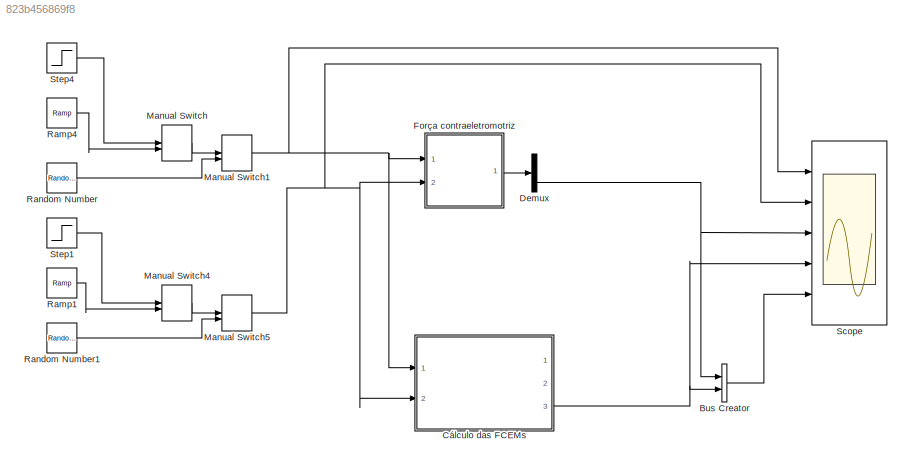
MODEL slx_823b456869f8
KIND model
BLOCK [BusCreator] Bus Creator
  DisplayOption = bar
  Inputs = 2
  Ports = [2, 1]
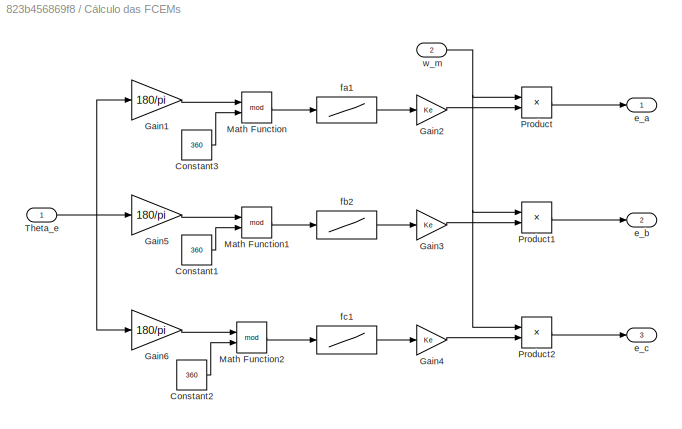
BLOCK [SubSystem] Cálculo das FCEMs
  FunctionWithSeparateData = off
  MaskHideContents = off
  MinAlgLoopOccurrences = off
  Opaque = off
  Ports = [2, 3]
  PropExecContextOutsideSubsystem = off
  RTWSystemCode = Auto
  RequestExecContextInheritance = off
BLOCK [Constant] Cálculo das FCEMs/Constant1
  Value = 360
BLOCK [Constant] Cálculo das FCEMs/Constant2
  Value = 360
BLOCK [Constant] Cálculo das FCEMs/Constant3
  Value = 360
BLOCK [Gain] Cálculo das FCEMs/Gain1
  Gain = 180/pi
  OutDataTypeStr = Inherit: Inherit via internal rule
  ParamDataTypeStr = Inherit: Inherit via internal rule
  SaturateOnIntegerOverflow = off
BLOCK [Gain] Cálculo das FCEMs/Gain2
  Gain = Ke
  OutDataTypeStr = Inherit: Inherit via internal rule
  ParamDataTypeStr = Inherit: Inherit via internal rule
  SaturateOnIntegerOverflow = off
BLOCK [Gain] Cálculo das FCEMs/Gain3
  Gain = Ke
  OutDataTypeStr = Inherit: Inherit via internal rule
  ParamDataTypeStr = Inherit: Inherit via internal rule
  SaturateOnIntegerOverflow = off
BLOCK [Gain] Cálculo das FCEMs/Gain4
  Gain = Ke
  OutDataTypeStr = Inherit: Inherit via internal rule
  ParamDataTypeStr = Inherit: Inherit via internal rule
  SaturateOnIntegerOverflow = off
BLOCK [Gain] Cálculo das FCEMs/Gain5
  Gain = 180/pi
  OutDataTypeStr = Inherit: Inherit via internal rule
  ParamDataTypeStr = Inherit: Inherit via internal rule
  SaturateOnIntegerOverflow = off
BLOCK [Gain] Cálculo das FCEMs/Gain6
  Gain = 180/pi
  OutDataTypeStr = Inherit: Inherit via internal rule
  ParamDataTypeStr = Inherit: Inherit via internal rule
  SaturateOnIntegerOverflow = off
BLOCK [Math] Cálculo das FCEMs/Math Function
  Operator = mod
  Ports = [2, 1]
BLOCK [Math] Cálculo das FCEMs/Math Function1
  Operator = mod
  Ports = [2, 1]
BLOCK [Math] Cálculo das FCEMs/Math Function2
  Operator = mod
  Ports = [2, 1]
BLOCK [Product] Cálculo das FCEMs/Product
  InputSameDT = off
  OutDataTypeStr = Inherit: Inherit via internal rule
  Ports = [2, 1]
  SaturateOnIntegerOverflow = off
BLOCK [Product] Cálculo das FCEMs/Product1
  InputSameDT = off
  OutDataTypeStr = Inherit: Inherit via internal rule
  Ports = [2, 1]
  SaturateOnIntegerOverflow = off
BLOCK [Product] Cálculo das FCEMs/Product2
  InputSameDT = off
  OutDataTypeStr = Inherit: Inherit via internal rule
  Ports = [2, 1]
  SaturateOnIntegerOverflow = off
BLOCK [Inport] Cálculo das FCEMs/Theta_e
  IconDisplay = Port number
BLOCK [Outport] Cálculo das FCEMs/e_a
  IconDisplay = Port number
BLOCK [Outport] Cálculo das FCEMs/e_b
  IconDisplay = Port number
  Port = 2
BLOCK [Outport] Cálculo das FCEMs/e_c
  IconDisplay = Port number
  Port = 3
BLOCK [Lookup] Cálculo das FCEMs/fa1
  InputValues = [0 30 60 90 120 150 180 210 240 270 300 330 360]
  SaturateOnIntegerOverflow = off
  Table = [ 1 1 1 0 -1 -1 -1 -1 -1 0 1 1 1]
BLOCK [Lookup] Cálculo das FCEMs/fb2
  InputValues = [0 30 60 90 120 150 180 210 240 270 300 330 360]
  SaturateOnIntegerOverflow = off
  Table = [-1 0 1 1 1 1 1 0 -1 -1 -1 -1 -1]
BLOCK [Lookup] Cálculo das FCEMs/fc1
  InputValues = [0 30 60 90 120 150 180 210 240 270 300 330 360]
  SaturateOnIntegerOverflow = off
  Table = [-1 -1 -1 -1 -1 0 1 1 1 1 1 0 -1]
BLOCK [Inport] Cálculo das FCEMs/w_m
  IconDisplay = Port number
  Port = 2
BLOCK [Demux] Demux
  DisplayOption = bar
  Outputs = 3
  Ports = [1, 3]
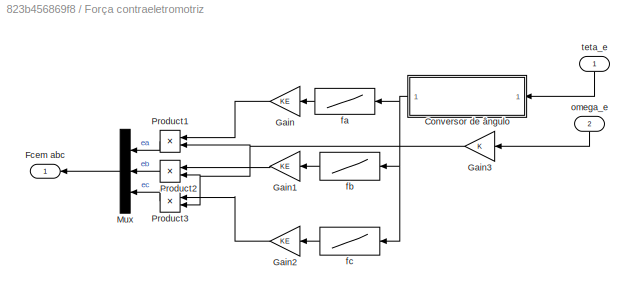
BLOCK [SubSystem] Força contraeletromotriz
  FunctionWithSeparateData = off
  MaskHideContents = off
  MinAlgLoopOccurrences = off
  Opaque = off
  Ports = [2, 1]
  PropExecContextOutsideSubsystem = off
  RTWSystemCode = Auto
  RequestExecContextInheritance = off
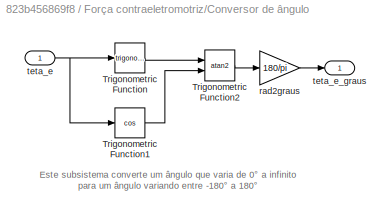
BLOCK [SubSystem] Força contraeletromotriz/Conversor de ângulo
  FunctionWithSeparateData = off
  MaskHideContents = off
  MinAlgLoopOccurrences = off
  Opaque = off
  Ports = [1, 1]
  PropExecContextOutsideSubsystem = off
  RTWSystemCode = Auto
  RequestExecContextInheritance = off
BLOCK [Trigonometry] Força contraeletromotriz/Conversor de ângulo/Trigonometric Function
  Ports = [1, 1]
BLOCK [Trigonometry] Força contraeletromotriz/Conversor de ângulo/Trigonometric Function1
  Operator = cos
  Ports = [1, 1]
BLOCK [Trigonometry] Força contraeletromotriz/Conversor de ângulo/Trigonometric Function2
  Operator = atan2
  Ports = [2, 1]
BLOCK [Gain] Força contraeletromotriz/Conversor de ângulo/rad2graus
  Gain = 180/pi
BLOCK [Inport] Força contraeletromotriz/Conversor de ângulo/teta_e
  IconDisplay = Port number
BLOCK [Outport] Força contraeletromotriz/Conversor de ângulo/teta_e_graus
  IconDisplay = Port number
BLOCK [Outport] Força contraeletromotriz/Fcem abc
  IconDisplay = Port number
BLOCK [Gain] Força contraeletromotriz/Gain
  Gain = KE
  OutDataTypeStr = Inherit: Inherit via internal rule
  ParamDataTypeStr = Inherit: Inherit via internal rule
  SaturateOnIntegerOverflow = off
BLOCK [Gain] Força contraeletromotriz/Gain1
  Gain = KE
  OutDataTypeStr = Inherit: Inherit via internal rule
  ParamDataTypeStr = Inherit: Inherit via internal rule
  SaturateOnIntegerOverflow = off
BLOCK [Gain] Força contraeletromotriz/Gain2
  Gain = KE
  OutDataTypeStr = Inherit: Inherit via internal rule
  ParamDataTypeStr = Inherit: Inherit via internal rule
  SaturateOnIntegerOverflow = off
BLOCK [Gain] Força contraeletromotriz/Gain3
  OutDataTypeStr = Inherit: Inherit via internal rule
  ParamDataTypeStr = Inherit: Inherit via internal rule
  SaturateOnIntegerOverflow = off
BLOCK [Mux] Força contraeletromotriz/Mux
  DisplayOption = bar
  Inputs = 3
  Ports = [3, 1]
BLOCK [Product] Força contraeletromotriz/Product1
  InputSameDT = off
  Ports = [2, 1]
  RndMeth = Floor
BLOCK [Product] Força contraeletromotriz/Product2
  InputSameDT = off
  Ports = [2, 1]
  RndMeth = Floor
BLOCK [Product] Força contraeletromotriz/Product3
  InputSameDT = off
  Ports = [2, 1]
  RndMeth = Floor
BLOCK [Lookup] Força contraeletromotriz/fa
  InputValues = [-180 -150 -120 -90 -60 -30 0 30 60 90 120 150 180]
  SaturateOnIntegerOverflow = off
  Table = [-1 -1 -1 0 1 1 1 1 1 0 -1 -1 -1]
BLOCK [Lookup] Força contraeletromotriz/fb
  InputValues = [-180 -150 -120 -90 -60 -30 0 30 60 90 120 150 180]
  SaturateOnIntegerOverflow = off
  Table = [1 0 -1 -1 -1 -1  -1 0 1 1 1 1 1]
BLOCK [Lookup] Força contraeletromotriz/fc
  InputValues = [-180 -150 -120 -90 -60 -30 0 30 60 90 120 150 180]
  SaturateOnIntegerOverflow = off
  Table = [1 1 1 1 1 0 -1 -1 -1 -1 -1 0 1]
BLOCK [Inport] Força contraeletromotriz/omega_e
  IconDisplay = Port number
  Port = 2
BLOCK [Inport] Força contraeletromotriz/teta_e
  IconDisplay = Port number
BLOCK [ManualSwitch] Manual Switch
BLOCK [ManualSwitch] Manual Switch1
  CurrentSetting = 0
BLOCK [ManualSwitch] Manual Switch4
BLOCK [ManualSwitch] Manual Switch5
  CurrentSetting = 0
BLOCK [Reference] Ramp1  REF=simulink/Sources/Ramp
  Ports = [0, 1]
  SourceBlock = simulink/Sources/Ramp
  SourceType = Ramp
  VectorParams1D = on
  X0 = 0
  slope = 20
  start = 0
BLOCK [Reference] Ramp4  REF=simulink/Sources/Ramp
  Ports = [0, 1]
  SourceBlock = simulink/Sources/Ramp
  SourceType = Ramp
  VectorParams1D = on
  X0 = 0
  slope = 2*pi
  start = 0
BLOCK [RandomNumber] Random Number
  SampleTime = 0.1
  Variance = 20
BLOCK [RandomNumber] Random Number1
  SampleTime = 0.1
  Seed = 1
  Variance = 20
BLOCK [Scope] Scope
  DataFormat = StructureWithTime
  Floating = off
  LimitDataPoints = off
  NumInputPorts = 5
  Ports = [5]
  SampleTime = 0
  ShowLegends = off
  TimeRange = 0.5
  YMax = 800000~800000~800000~5~5
  YMin = 0~0~0~-5~-5
  ZoomMode = yonly
BLOCK [Step] Step1
  After = 20
  SampleTime = 0
  Time = 0
BLOCK [Step] Step4
  After = -3.115
  SampleTime = 0
  Time = 0
ANNOTATION Força contraeletromotriz/Conversor de ângulo: Este subsistema converte um ângulo que varia de 0° a infinito para um ângulo variando entre -180° a 180°
LINE Bus Creator:1 -> Scope:5
LINE Cálculo das FCEMs/Constant1:1 -> Cálculo das FCEMs/Math Function1:2
LINE Cálculo das FCEMs/Constant2:1 -> Cálculo das FCEMs/Math Function2:2
LINE Cálculo das FCEMs/Constant3:1 -> Cálculo das FCEMs/Math Function:2
LINE Cálculo das FCEMs/Gain1:1 -> Cálculo das FCEMs/Math Function:1
LINE Cálculo das FCEMs/Gain2:1 -> Cálculo das FCEMs/Product:2
LINE Cálculo das FCEMs/Gain3:1 -> Cálculo das FCEMs/Product1:2
LINE Cálculo das FCEMs/Gain4:1 -> Cálculo das FCEMs/Product2:2
LINE Cálculo das FCEMs/Gain5:1 -> Cálculo das FCEMs/Math Function1:1
LINE Cálculo das FCEMs/Gain6:1 -> Cálculo das FCEMs/Math Function2:1
LINE Cálculo das FCEMs/Math Function1:1 -> Cálculo das FCEMs/fb2:1
LINE Cálculo das FCEMs/Math Function2:1 -> Cálculo das FCEMs/fc1:1
LINE Cálculo das FCEMs/Math Function:1 -> Cálculo das FCEMs/fa1:1
LINE Cálculo das FCEMs/Product1:1 -> Cálculo das FCEMs/e_b:1
LINE Cálculo das FCEMs/Product2:1 -> Cálculo das FCEMs/e_c:1
LINE Cálculo das FCEMs/Product:1 -> Cálculo das FCEMs/e_a:1
NET Cálculo das FCEMs/Theta_e:1 -> Cálculo das FCEMs/Gain1:1, Cálculo das FCEMs/Gain5:1, Cálculo das FCEMs/Gain6:1
LINE Cálculo das FCEMs/fa1:1 -> Cálculo das FCEMs/Gain2:1
LINE Cálculo das FCEMs/fb2:1 -> Cálculo das FCEMs/Gain3:1
LINE Cálculo das FCEMs/fc1:1 -> Cálculo das FCEMs/Gain4:1
NET Cálculo das FCEMs/w_m:1 -> Cálculo das FCEMs/Product1:1, Cálculo das FCEMs/Product2:1, Cálculo das FCEMs/Product:1
NET Cálculo das FCEMs:3 -> Bus Creator:2, Scope:4
NET Demux:3 -> Bus Creator:1, Scope:3
LINE Força contraeletromotriz/Conversor de ângulo/Trigonometric Function1:1 -> Força contraeletromotriz/Conversor de ângulo/Trigonometric Function2:2
LINE Força contraeletromotriz/Conversor de ângulo/Trigonometric Function2:1 -> Força contraeletromotriz/Conversor de ângulo/rad2graus:1
LINE Força contraeletromotriz/Conversor de ângulo/Trigonometric Function:1 -> Força contraeletromotriz/Conversor de ângulo/Trigonometric Function2:1
LINE Força contraeletromotriz/Conversor de ângulo/rad2graus:1 -> Força contraeletromotriz/Conversor de ângulo/teta_e_graus:1
NET Força contraeletromotriz/Conversor de ângulo/teta_e:1 -> Força contraeletromotriz/Conversor de ângulo/Trigonometric Function1:1, Força contraeletromotriz/Conversor de ângulo/Trigonometric Function:1
NET Força contraeletromotriz/Conversor de ângulo:1 -> Força contraeletromotriz/fa:1, Força contraeletromotriz/fb:1, Força contraeletromotriz/fc:1
LINE Força contraeletromotriz/Gain1:1 -> Força contraeletromotriz/Product2:1
LINE Força contraeletromotriz/Gain2:1 -> Força contraeletromotriz/Product3:1
NET Força contraeletromotriz/Gain3:1 -> Força contraeletromotriz/Product1:2, Força contraeletromotriz/Product2:2, Força contraeletromotriz/Product3:2
LINE Força contraeletromotriz/Gain:1 -> Força contraeletromotriz/Product1:1
LINE Força contraeletromotriz/Mux:1 -> Força contraeletromotriz/Fcem abc:1
LINE Força contraeletromotriz/Product1:1 -> Força contraeletromotriz/Mux:1
LINE Força contraeletromotriz/Product2:1 -> Força contraeletromotriz/Mux:2
LINE Força contraeletromotriz/Product3:1 -> Força contraeletromotriz/Mux:3
LINE Força contraeletromotriz/fa:1 -> Força contraeletromotriz/Gain:1
LINE Força contraeletromotriz/fb:1 -> Força contraeletromotriz/Gain1:1
LINE Força contraeletromotriz/fc:1 -> Força contraeletromotriz/Gain2:1
LINE Força contraeletromotriz/omega_e:1 -> Força contraeletromotriz/Gain3:1
LINE Força contraeletromotriz/teta_e:1 -> Força contraeletromotriz/Conversor de ângulo:1
LINE Força contraeletromotriz:1 -> Demux:1
NET Manual Switch1:1 -> Cálculo das FCEMs:1, Força contraeletromotriz:1, Scope:1
LINE Manual Switch4:1 -> Manual Switch5:1
NET Manual Switch5:1 -> Cálculo das FCEMs:2, Força contraeletromotriz:2, Scope:2
LINE Manual Switch:1 -> Manual Switch1:1
LINE Ramp1:1 -> Manual Switch4:2
LINE Ramp4:1 -> Manual Switch:2
LINE Random Number1:1 -> Manual Switch5:2
LINE Random Number:1 -> Manual Switch1:2
LINE Step1:1 -> Manual Switch4:1
LINE Step4:1 -> Manual Switch:1
note: NET lines group one-source signal fan-out (src -> all destinations, sorted); 1:1 wires keep LINE
